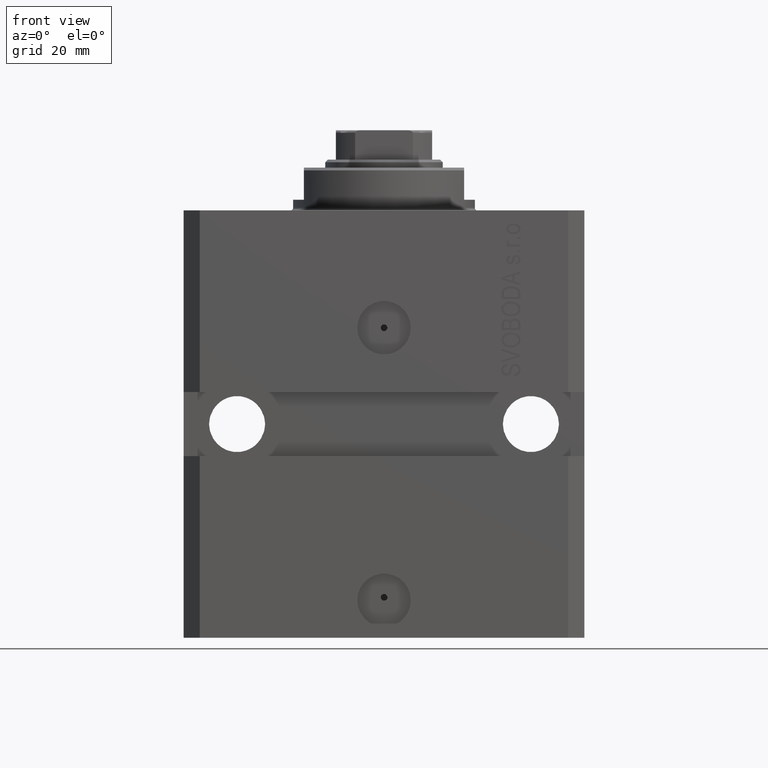
[diagram: clean part render]
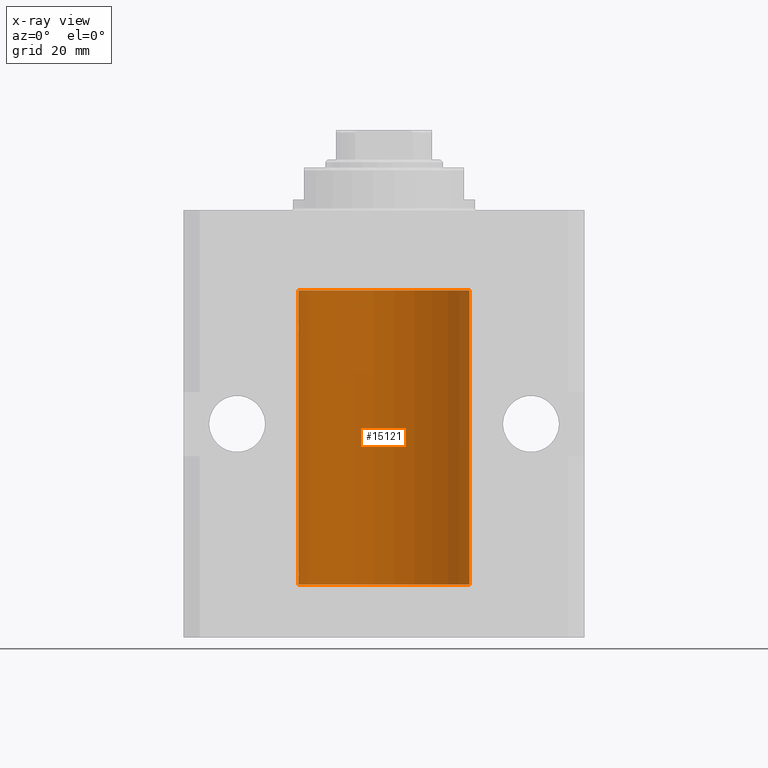
[diagram: x-ray — body ghosted, one internal face saturated and labeled with its STEP entity id]
A machine part, front view, then the same camera in x-ray: the body is ghosted and one INTERNAL B-rep face — a face not visible from any outside direction — is saturated and labeled: STEP entity #15121.
In plain terms, the highlighted cylindrical surface (partial cylindrical patch) has radius 16 mm, axis along (0, 0, 1).
Its self-contained STEP definition (entity closure, byte-faithful):
#343 = VERTEX_POINT ( 'NONE', #33192 ) ;
#554 = CIRCLE ( 'NONE', #20178, 16.00000000000000000 ) ;
#1119 = ORIENTED_EDGE ( 'NONE', *, *, #11971, .F. ) ;
#2196 = VERTEX_POINT ( 'NONE', #26867 ) ;
#2544 = CARTESIAN_POINT ( 'NONE',  ( -15.99999999999998934, 0.1631714642025807183, -68.62499999999984368 ) ) ;
#2813 = CARTESIAN_POINT ( 'NONE',  ( -15.99070426498503217, 0.5462220647145618058, -22.31460064614143590 ) ) ;
#3747 = DIRECTION ( 'NONE',  ( 1.000000000000000000, 0.000000000000000000, 0.000000000000000000 ) ) ;
#4784 = VERTEX_POINT ( 'NONE', #9954 ) ;
#5861 = CARTESIAN_POINT ( 'NONE',  ( -15.99070653155268040, 0.5573233280232966491, -67.67348148680505915 ) ) ;
#6121 = CARTESIAN_POINT ( 'NONE',  ( -15.99228023727724413, 0.5003781296993413674, -22.38347829554236057 ) ) ;
#6333 = VERTEX_POINT ( 'NONE', #12732 ) ;
#6595 = CARTESIAN_POINT ( 'NONE',  ( -15.98844267028591482, 0.6088369347963316081, -22.16324735024328518 ) ) ;
#6620 = LINE ( 'NONE', #13950, #28229 ) ;
#7103 = VERTEX_POINT ( 'NONE', #34738 ) ;
#8813 = CARTESIAN_POINT ( 'NONE',  ( -16.00000000000000000, 1.959434878635765131E-15, -70.09999999999999432 ) ) ;
#9643 = CARTESIAN_POINT ( 'NONE',  ( -16.00000000000013145, 3.685127046438747128E-13, -68.62500000000343903 ) ) ;
#9683 = CARTESIAN_POINT ( 'NONE',  ( -15.99070653155267685, 0.5573233280232986475, -21.67348148680506625 ) ) ;
#9774 = EDGE_CURVE ( 'NONE', #343, #2196, #6620, .T. ) ;
#9909 = EDGE_CURVE ( 'NONE', #28350, #4784, #22938, .T. ) ;
#9954 = CARTESIAN_POINT ( 'NONE',  ( 16.00000000000000000, 0.000000000000000000, -15.00000000000000000 ) ) ;
#10383 = CARTESIAN_POINT ( 'NONE',  ( -16.00000000000000000, 1.643679961284177128E-16, -21.37499999999999645 ) ) ;
#10404 = DIRECTION ( 'NONE',  ( -0.000000000000000000, -0.000000000000000000, 1.000000000000000000 ) ) ;
#10605 = DIRECTION ( 'NONE',  ( 1.000000000000000000, 0.000000000000000000, 0.000000000000000000 ) ) ;
#10929 = ORIENTED_EDGE ( 'NONE', *, *, #14107, .F. ) ;
#11971 = EDGE_CURVE ( 'NONE', #7103, #6333, #15911, .T. ) ;
#12264 = DIRECTION ( 'NONE',  ( -0.000000000000000000, -0.000000000000000000, 1.000000000000000000 ) ) ;
#12432 = VECTOR ( 'NONE', #16149, 1000.000000000000000 ) ;
#12732 = CARTESIAN_POINT ( 'NONE',  ( -16.00000000000013145, 3.685127046438747128E-13, -68.62500000000343903 ) ) ;
#12958 = CARTESIAN_POINT ( 'NONE',  ( -15.98779057735153586, 0.6249419637998054888, -67.83670145863507628 ) ) ;
#13861 = ORIENTED_EDGE ( 'NONE', *, *, #30075, .T. ) ;
#13920 = DIRECTION ( 'NONE',  ( 0.000000000000000000, 0.000000000000000000, 1.000000000000000000 ) ) ;
#13950 = CARTESIAN_POINT ( 'NONE',  ( -16.00000000000000000, 1.959434878635765131E-15, -70.09999999999999432 ) ) ;
#14107 = EDGE_CURVE ( 'NONE', #28350, #7103, #45767, .T. ) ;
#14158 = DIRECTION ( 'NONE',  ( 0.000000000000000000, 0.000000000000000000, 1.000000000000000000 ) ) ;
#15121 = ADVANCED_FACE ( 'NONE', ( #35757 ), #46422, .F. ) ;
#15911 = LINE ( 'NONE', #8813, #12432 ) ;
#16149 = DIRECTION ( 'NONE',  ( -0.000000000000000000, -0.000000000000000000, 1.000000000000000000 ) ) ;
#16781 = CARTESIAN_POINT ( 'NONE',  ( -16.00000000000000711, 0.08259886010189904093, -21.37500000000000000 ) ) ;
#16839 = ORIENTED_EDGE ( 'NONE', *, *, #22063, .T. ) ;
#16972 = CARTESIAN_POINT ( 'NONE',  ( -15.99228023727723702, 0.5003781296993395911, -68.38347829554236057 ) ) ;
#17249 = EDGE_CURVE ( 'NONE', #31913, #31958, #31999, .T. ) ;
#19886 = EDGE_LOOP ( 'NONE', ( #1119, #10929, #40917, #16839, #27125, #30103, #28331, #13861 ) ) ;
#20109 = CARTESIAN_POINT ( 'NONE',  ( -15.98779057735153941, 0.6249419637998100407, -21.83670145863507273 ) ) ;
#20178 = AXIS2_PLACEMENT_3D ( 'NONE', #46360, #13920, #3747 ) ;
#20424 = DIRECTION ( 'NONE',  ( -0.000000000000000000, -0.000000000000000000, 1.000000000000000000 ) ) ;
#20759 = CARTESIAN_POINT ( 'NONE',  ( -16.00000000000000000, -9.346608026143465119E-15, -67.37500000000000000 ) ) ;
#21242 = B_SPLINE_CURVE_WITH_KNOTS ( 'NONE', 3,
 ( #20759, #35184, #38509, #34956, #27413, #5861, #12958, #27866, #23868, #38971, #16972, #24100, #2544, #9643 ),
 .UNSPECIFIED., .F., .F.,
 ( 4, 2, 2, 2, 2, 2, 4 ),
 ( 9.902737362640428303E-19, 0.0002442776652680895785, 0.0004885553305361781812, 0.0009771106610723552782, 0.001221388326340464752, 0.001465665991608574008, 0.001954221322144763465 ),
 .UNSPECIFIED. ) ;
#21566 = DIRECTION ( 'NONE',  ( -0.000000000000000000, -0.000000000000000000, 1.000000000000000000 ) ) ;
#21640 = CARTESIAN_POINT ( 'NONE',  ( 16.00000000000000000, 0.000000000000000000, -70.09999999999999432 ) ) ;
#22063 = EDGE_CURVE ( 'NONE', #4784, #31958, #554, .T. ) ;
#22510 = CARTESIAN_POINT ( 'NONE',  ( -16.00000000000000000, 1.959434878635765131E-15, -15.00000000000000000 ) ) ;
#22938 = LINE ( 'NONE', #37347, #29004 ) ;
#23868 = CARTESIAN_POINT ( 'NONE',  ( -15.98844267028591126, 0.6088369347963314970, -68.16324735024328163 ) ) ;
#24100 = CARTESIAN_POINT ( 'NONE',  ( -15.99711699979840951, 0.3253759916140645525, -68.55856151623176231 ) ) ;
#24838 = CARTESIAN_POINT ( 'NONE',  ( -15.99934216141748244, 0.1636497843296417787, -21.39126528029306229 ) ) ;
#26867 = CARTESIAN_POINT ( 'NONE',  ( -16.00000000000013145, 3.685127034031037939E-13, -22.62500000000341771 ) ) ;
#27125 = ORIENTED_EDGE ( 'NONE', *, *, #17249, .F. ) ;
#27413 = CARTESIAN_POINT ( 'NONE',  ( -15.99548640841682712, 0.3843705577988820732, -67.50046628527007897 ) ) ;
#27866 = CARTESIAN_POINT ( 'NONE',  ( -15.98778717651346426, 0.6250289588122136530, -68.08131585687053189 ) ) ;
#28229 = VECTOR ( 'NONE', #10404, 1000.000000000000000 ) ;
#28331 = ORIENTED_EDGE ( 'NONE', *, *, #9774, .F. ) ;
#28350 = VERTEX_POINT ( 'NONE', #21640 ) ;
#28369 = CARTESIAN_POINT ( 'NONE',  ( -16.00000000000000000, 0.1631714642025800244, -22.62499999999985789 ) ) ;
#29004 = VECTOR ( 'NONE', #12264, 1000.000000000000000 ) ;
#29969 = VECTOR ( 'NONE', #20424, 1000.000000000000000 ) ;
#30075 = EDGE_CURVE ( 'NONE', #343, #6333, #21242, .T. ) ;
#30103 = ORIENTED_EDGE ( 'NONE', *, *, #34810, .T. ) ;
#31215 = CARTESIAN_POINT ( 'NONE',  ( -16.00000000000013145, 3.685127034031037939E-13, -22.62500000000341771 ) ) ;
#31384 = AXIS2_PLACEMENT_3D ( 'NONE', #45889, #14158, #10605 ) ;
#31681 = CARTESIAN_POINT ( 'NONE',  ( -15.99548640841683067, 0.3843705577988847377, -21.50046628527008608 ) ) ;
#31913 = VERTEX_POINT ( 'NONE', #39556 ) ;
#31958 = VERTEX_POINT ( 'NONE', #22510 ) ;
#31999 = LINE ( 'NONE', #34844, #29969 ) ;
#33192 = CARTESIAN_POINT ( 'NONE',  ( -16.00000000000000000, -9.346608026143465119E-15, -67.37500000000000000 ) ) ;
#33938 = B_SPLINE_CURVE_WITH_KNOTS ( 'NONE', 3,
 ( #10383, #16781, #24838, #35223, #31681, #9683, #20109, #39250, #6595, #2813, #6121, #34538, #28369, #31215 ),
 .UNSPECIFIED., .F., .F.,
 ( 4, 2, 2, 2, 2, 2, 4 ),
 ( 1.597328219370744179E-19, 0.0002442776652680942405, 0.0004885553305361882643, 0.0009771106610723839011, 0.001221388326340481665, 0.001465665991608579430, 0.001954221322144767369 ),
 .UNSPECIFIED. ) ;
#34538 = CARTESIAN_POINT ( 'NONE',  ( -15.99711699979842017, 0.3253759916140657737, -22.55856151623175521 ) ) ;
#34738 = CARTESIAN_POINT ( 'NONE',  ( -16.00000000000000000, 1.959434878635765131E-15, -70.09999999999999432 ) ) ;
#34810 = EDGE_CURVE ( 'NONE', #31913, #2196, #33938, .T. ) ;
#34844 = CARTESIAN_POINT ( 'NONE',  ( -16.00000000000000000, 1.959434878635765131E-15, -70.09999999999999432 ) ) ;
#34956 = CARTESIAN_POINT ( 'NONE',  ( -15.99707730059171240, 0.3150375992092334654, -67.45402333202571299 ) ) ;
#35184 = CARTESIAN_POINT ( 'NONE',  ( -16.00000000000000711, 0.08259886010189028405, -67.37500000000001421 ) ) ;
#35223 = CARTESIAN_POINT ( 'NONE',  ( -15.99707730059171240, 0.3150375992092407373, -21.45402333202571654 ) ) ;
#35757 = FACE_OUTER_BOUND ( 'NONE', #19886, .T. ) ;
#36722 = AXIS2_PLACEMENT_3D ( 'NONE', #40011, #21566, #43340 ) ;
#37347 = CARTESIAN_POINT ( 'NONE',  ( 16.00000000000000000, 0.000000000000000000, -70.09999999999999432 ) ) ;
#38509 = CARTESIAN_POINT ( 'NONE',  ( -15.99934216141748244, 0.1636497843296345067, -67.39126528029308361 ) ) ;
#38971 = CARTESIAN_POINT ( 'NONE',  ( -15.99070426498502862, 0.5462220647145645813, -68.31460064614141459 ) ) ;
#39250 = CARTESIAN_POINT ( 'NONE',  ( -15.98778717651346071, 0.6250289588122140971, -22.08131585687052478 ) ) ;
#39556 = CARTESIAN_POINT ( 'NONE',  ( -16.00000000000000000, 1.643679961284177128E-16, -21.37499999999999645 ) ) ;
#40011 = CARTESIAN_POINT ( 'NONE',  ( 0.000000000000000000, 0.000000000000000000, -70.09999999999999432 ) ) ;
#40917 = ORIENTED_EDGE ( 'NONE', *, *, #9909, .T. ) ;
#43340 = DIRECTION ( 'NONE',  ( 1.000000000000000000, 0.000000000000000000, 0.000000000000000000 ) ) ;
#45767 = CIRCLE ( 'NONE', #31384, 16.00000000000000000 ) ;
#45889 = CARTESIAN_POINT ( 'NONE',  ( 0.000000000000000000, 0.000000000000000000, -70.09999999999999432 ) ) ;
#46360 = CARTESIAN_POINT ( 'NONE',  ( 0.000000000000000000, 0.000000000000000000, -15.00000000000000000 ) ) ;
#46422 = CYLINDRICAL_SURFACE ( 'NONE', #36722, 16.00000000000000000 ) ;